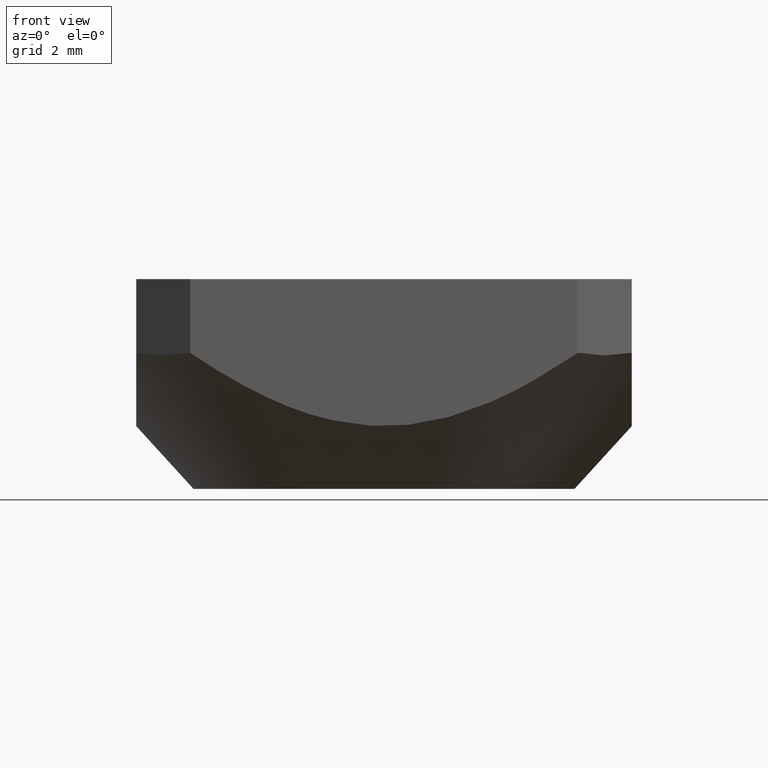
[diagram: clean part render]
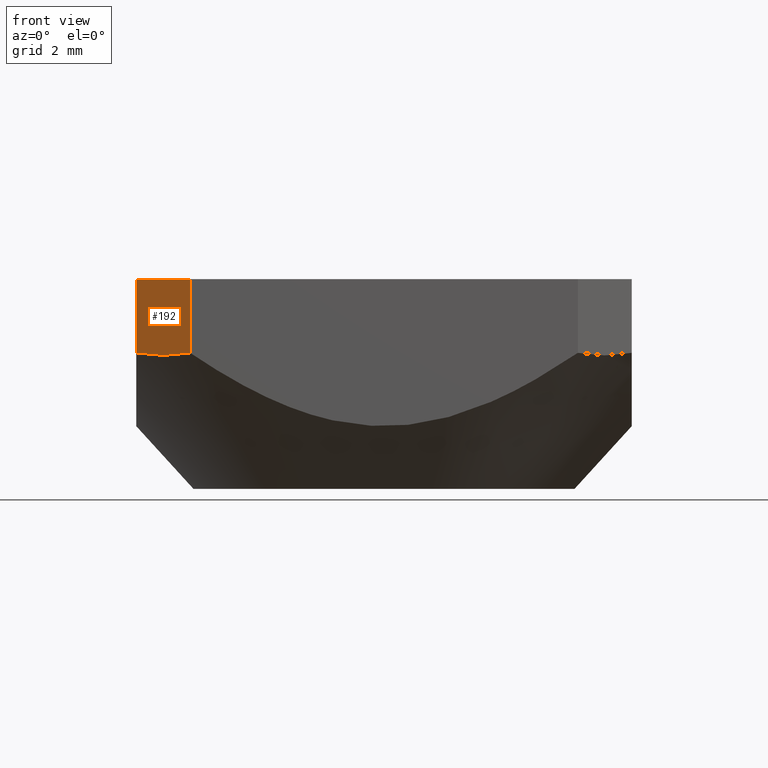
[diagram: same view with one face highlighted and labeled with its STEP entity id]
A machine part, front view. The second image highlights one B-rep face of the part: STEP entity #192.
In plain terms, the highlighted planar face has unit normal (-0.7071, -0.7071, 0).
Its self-contained STEP definition (entity closure, byte-faithful):
#16 = LINE ( 'NONE', #287, #348 ) ;
#29 = VECTOR ( 'NONE', #405, 1000.000000000000000 ) ;
#34 = EDGE_CURVE ( 'NONE', #81, #344, #463, .T. ) ;
#58 = CARTESIAN_POINT ( 'NONE',  ( -5.085786437626905077, -6.500000000000002665, 0.0000000000000000000 ) ) ;
#81 = VERTEX_POINT ( 'NONE', #58 ) ;
#92 = CARTESIAN_POINT ( 'NONE',  ( -5.085786437626905965, -6.500000000000002665, 0.0000000000000000000 ) ) ;
#98 = CARTESIAN_POINT ( 'NONE',  ( -6.500000000000000888, -5.085786437626906853, 0.0000000000000000000 ) ) ;
#99 = CARTESIAN_POINT ( 'NONE',  ( -6.500000000012470913, -5.085786437677108474, -1.933334202242376954 ) ) ;
#119 = ORIENTED_EDGE ( 'NONE', *, *, #460, .F. ) ;
#120 = ORIENTED_EDGE ( 'NONE', *, *, #34, .F. ) ;
#173 = FACE_OUTER_BOUND ( 'NONE', #451, .T. ) ;
#192 = ADVANCED_FACE ( 'NONE', ( #173 ), #378, .T. ) ;
#249 = DIRECTION ( 'NONE',  ( 0.7071067811865474617, -0.7071067811865474617, 0.0000000000000000000 ) ) ;
#273 = ORIENTED_EDGE ( 'NONE', *, *, #466, .T. ) ;
#287 = CARTESIAN_POINT ( 'NONE',  ( -6.500000000000000888, -5.085786437626906853, 0.0000000000000000000 ) ) ;
#290 = DIRECTION ( 'NONE',  ( 0.7071067811865473507, -0.7071067811865477948, 0.0000000000000000000 ) ) ;
#294 = EDGE_CURVE ( 'NONE', #482, #358, #388, .T. ) ;
#343 = ORIENTED_EDGE ( 'NONE', *, *, #294, .T. ) ;
#344 = VERTEX_POINT ( 'NONE', #503 ) ;
#348 = VECTOR ( 'NONE', #290, 1000.000000000000000 ) ;
#358 = VERTEX_POINT ( 'NONE', #441 ) ;
#377 = VECTOR ( 'NONE', #573, 1000.000000000000000 ) ;
#378 = PLANE ( 'NONE',  #545 ) ;
#388 = LINE ( 'NONE', #392, #377 ) ;
#392 = CARTESIAN_POINT ( 'NONE',  ( -6.500000000000000888, -5.085786437626906853, 0.0000000000000000000 ) ) ;
#405 = DIRECTION ( 'NONE',  ( 0.0000000000000000000, -0.0000000000000000000, -1.000000000000000000 ) ) ;
#408 = CARTESIAN_POINT ( 'NONE',  ( -5.085786437677105809, -6.500000000012473578, -1.933334202242374511 ) ) ;
#417 = CARTESIAN_POINT ( 'NONE',  ( -5.557190958382846269, -6.028595479244061472, -2.021894486498652999 ) ) ;
#441 = CARTESIAN_POINT ( 'NONE',  ( -6.500000000012470913, -5.085786437677108474, -1.933334202242376954 ) ) ;
#451 = EDGE_LOOP ( 'NONE', ( #119, #343, #273, #120 ) ) ;
#460 = EDGE_CURVE ( 'NONE', #482, #81, #16, .T. ) ;
#463 = LINE ( 'NONE', #92, #29 ) ;
#466 = EDGE_CURVE ( 'NONE', #358, #344, #542, .T. ) ;
#482 = VERTEX_POINT ( 'NONE', #98 ) ;
#503 = CARTESIAN_POINT ( 'NONE',  ( -5.085786437677105809, -6.500000000012473578, -1.933334202242374511 ) ) ;
#512 = DIRECTION ( 'NONE',  ( -0.7071067811865475727, -0.7071067811865475727, 0.0000000000000000000 ) ) ;
#531 = CARTESIAN_POINT ( 'NONE',  ( -6.028595479226078524, -5.557190958361346134, -2.021894486487704423 ) ) ;
#542 = B_SPLINE_CURVE_WITH_KNOTS ( 'NONE', 3,
 ( #99, #531, #417, #408 ),
 .UNSPECIFIED., .F., .F.,
 ( 4, 4 ),
 ( 6.051111803072601847E-14, 0.002000000000007151873 ),
 .UNSPECIFIED. ) ;
#545 = AXIS2_PLACEMENT_3D ( 'NONE', #564, #512, #249 ) ;
#564 = CARTESIAN_POINT ( 'NONE',  ( -6.500000000000000888, -5.085786437626906853, 0.0000000000000000000 ) ) ;
#573 = DIRECTION ( 'NONE',  ( -0.0000000000000000000, -0.0000000000000000000, -1.000000000000000000 ) ) ;